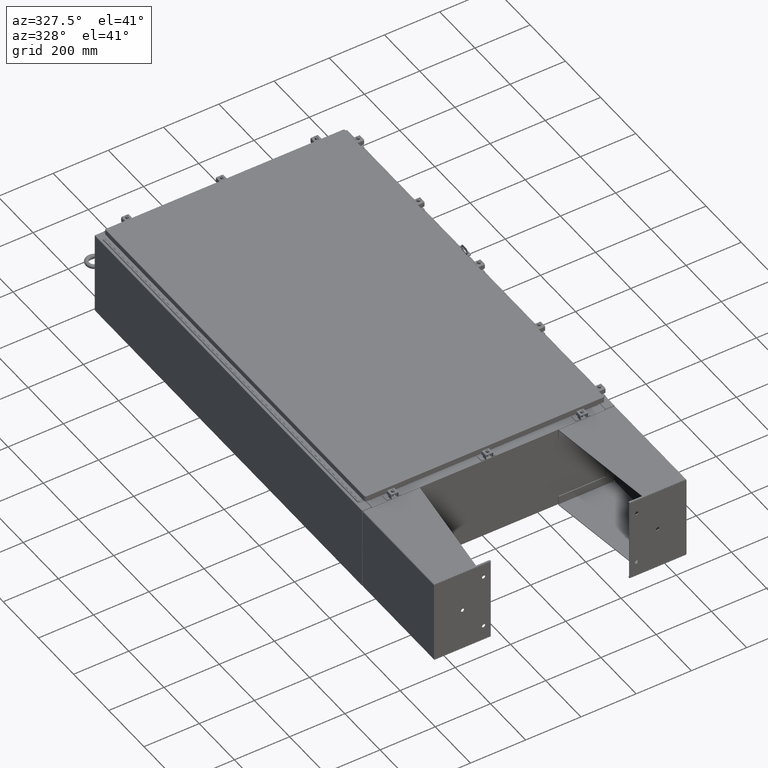
[diagram: clean part render]
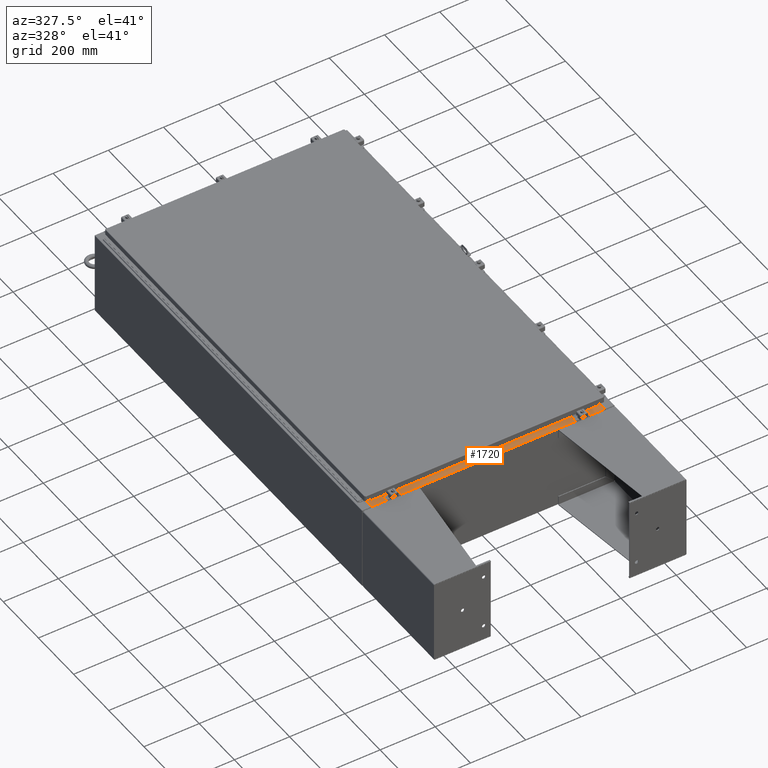
[diagram: same view with one face highlighted and labeled with its STEP entity id]
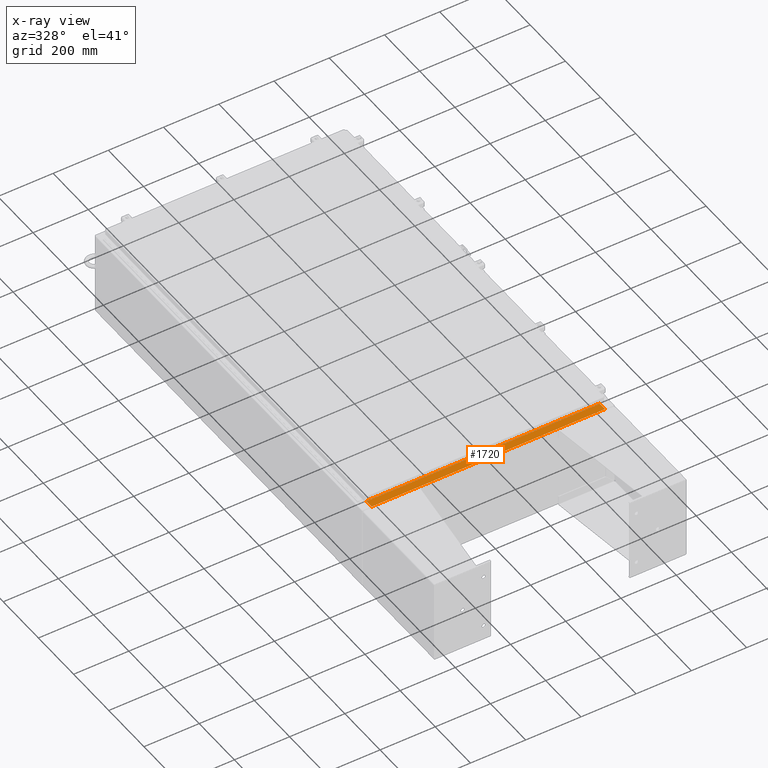
[diagram: x-ray of the same camera — body ghosted, the highlighted face saturated]
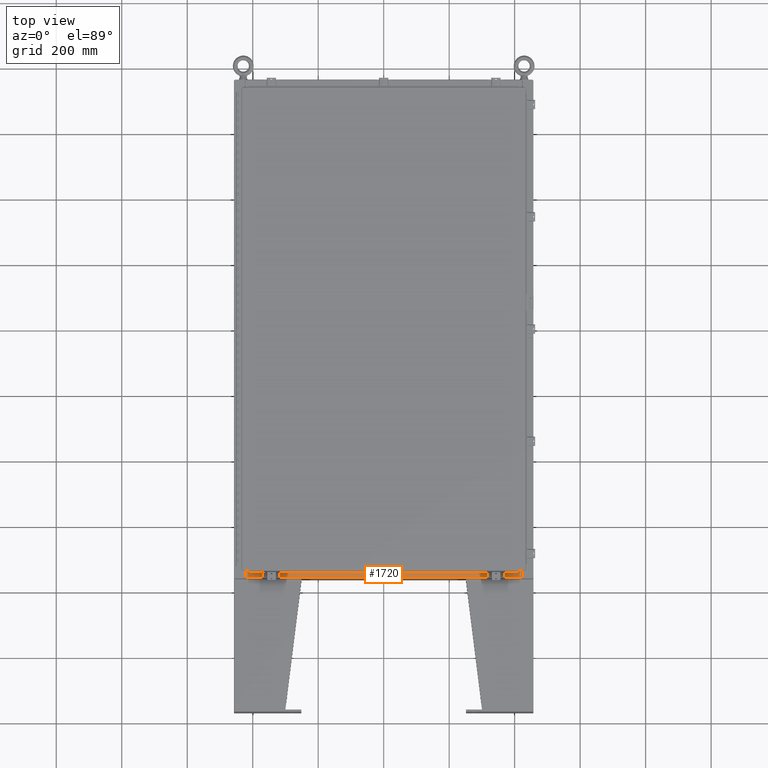
[diagram: same view with one face highlighted and labeled with its STEP entity id]
A machine part, auxiliary view. The second image highlights one B-rep face of the part: STEP entity #1720.
The next image is the same camera in x-ray: the body ghosted, the highlighted face saturated — about 0% of this face is hidden behind the body in this view.
A second angle (top view) of the same face is appended — the face is thin or edge-on in the first view.
In plain terms, the highlighted planar face has unit normal (-0, -0, 1).
Its self-contained STEP definition (entity closure, byte-faithful):
#129 = EDGE_LOOP ( 'NONE', ( #26149, #24657, #47297, #13910 ) ) ;
#319 = FACE_OUTER_BOUND ( 'NONE', #129, .T. ) ;
#1720 = ADVANCED_FACE ( 'NONE', ( #319 ), #39897, .T. ) ;
#2850 = VERTEX_POINT ( 'NONE', #43914 ) ;
#5313 = VECTOR ( 'NONE', #28810, 39.37007874015748100 ) ;
#6688 = CARTESIAN_POINT ( 'NONE',  ( -16.63719999999999600, -0.08769999999999972300, 5.999999999999999100 ) ) ;
#9516 = CARTESIAN_POINT ( 'NONE',  ( 16.63720000000000400, -0.08769999999999948700, 5.999999999999999100 ) ) ;
#10818 = VERTEX_POINT ( 'NONE', #6688 ) ;
#13910 = ORIENTED_EDGE ( 'NONE', *, *, #21516, .T. ) ;
#13992 = CARTESIAN_POINT ( 'NONE',  ( -5.156971724347648400E-018, -0.08769999999999972300, 5.999999999999999100 ) ) ;
#18294 = DIRECTION ( 'NONE',  ( 0.0000000000000000000, 2.674785894579892700E-015, 1.000000000000000000 ) ) ;
#21516 = EDGE_CURVE ( 'NONE', #59384, #10818, #35700, .T. ) ;
#24657 = ORIENTED_EDGE ( 'NONE', *, *, #31806, .F. ) ;
#25737 = DIRECTION ( 'NONE',  ( -0.0000000000000000000, 1.000000000000000000, -2.674785894579892700E-015 ) ) ;
#25776 = VECTOR ( 'NONE', #62277, 39.37007874015748100 ) ;
#26149 = ORIENTED_EDGE ( 'NONE', *, *, #36341, .F. ) ;
#28810 = DIRECTION ( 'NONE',  ( -1.000000000000000000, 0.0000000000000000000, 0.0000000000000000000 ) ) ;
#28824 = VECTOR ( 'NONE', #25737, 39.37007874015748100 ) ;
#30519 = DIRECTION ( 'NONE',  ( -1.000000000000000000, 3.284023746380717400E-017, -8.784060394284559800E-032 ) ) ;
#30978 = DIRECTION ( 'NONE',  ( 0.0000000000000000000, -1.000000000000000000, 2.674785894579892700E-015 ) ) ;
#31806 = EDGE_CURVE ( 'NONE', #46339, #2850, #61005, .T. ) ;
#32617 = EDGE_CURVE ( 'NONE', #59384, #46339, #55205, .T. ) ;
#33689 = CARTESIAN_POINT ( 'NONE',  ( 16.63720000000000400, -1.287299999999999400, 6.000000000000003600 ) ) ;
#35700 = LINE ( 'NONE', #13992, #60071 ) ;
#36341 = EDGE_CURVE ( 'NONE', #2850, #10818, #42707, .T. ) ;
#38824 = CARTESIAN_POINT ( 'NONE',  ( -2.276882898771239300E-018, 1.610972251716581800E-014, 5.999999999999999100 ) ) ;
#39897 = PLANE ( 'NONE',  #43435 ) ;
#42707 = LINE ( 'NONE', #46582, #28824 ) ;
#43435 = AXIS2_PLACEMENT_3D ( 'NONE', #38824, #18294, #30978 ) ;
#43914 = CARTESIAN_POINT ( 'NONE',  ( -16.63719999999999600, -1.287299999999998600, 6.000000000000002700 ) ) ;
#46339 = VERTEX_POINT ( 'NONE', #33689 ) ;
#46582 = CARTESIAN_POINT ( 'NONE',  ( -16.63719999999999600, -0.07469999999999973900, 5.999999999999999100 ) ) ;
#47297 = ORIENTED_EDGE ( 'NONE', *, *, #32617, .F. ) ;
#55205 = LINE ( 'NONE', #62496, #25776 ) ;
#59384 = VERTEX_POINT ( 'NONE', #9516 ) ;
#60048 = CARTESIAN_POINT ( 'NONE',  ( 16.63720000000000400, -1.287299999999999400, 6.000000000000001800 ) ) ;
#60071 = VECTOR ( 'NONE', #30519, 39.37007874015748100 ) ;
#61005 = LINE ( 'NONE', #60048, #5313 ) ;
#62277 = DIRECTION ( 'NONE',  ( -0.0000000000000000000, -1.000000000000000000, 3.566381192773190000E-015 ) ) ;
#62496 = CARTESIAN_POINT ( 'NONE',  ( 16.63720000000000400, -1.300299999999999800, 6.000000000000003600 ) ) ;